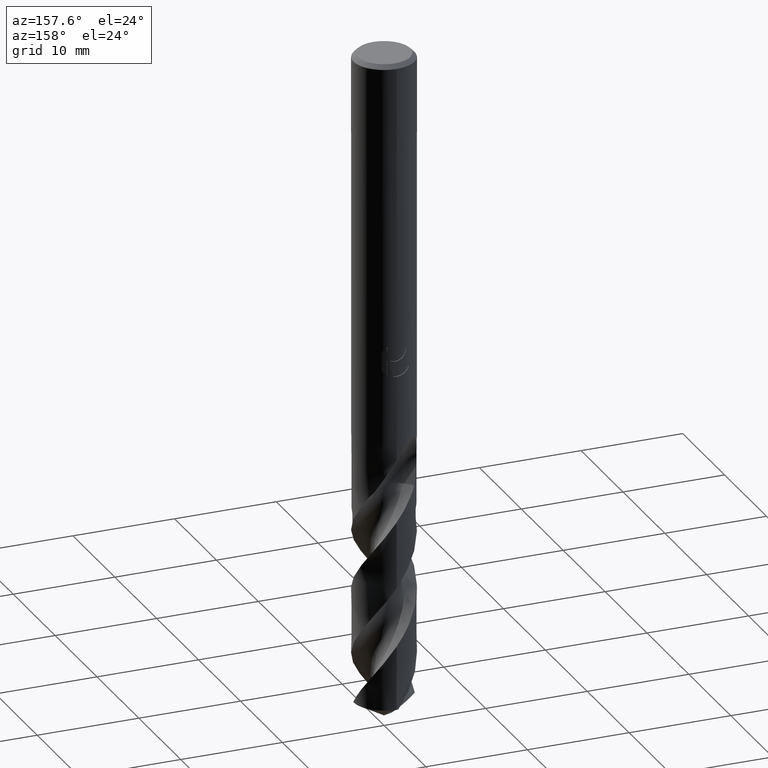
[diagram: clean part render]
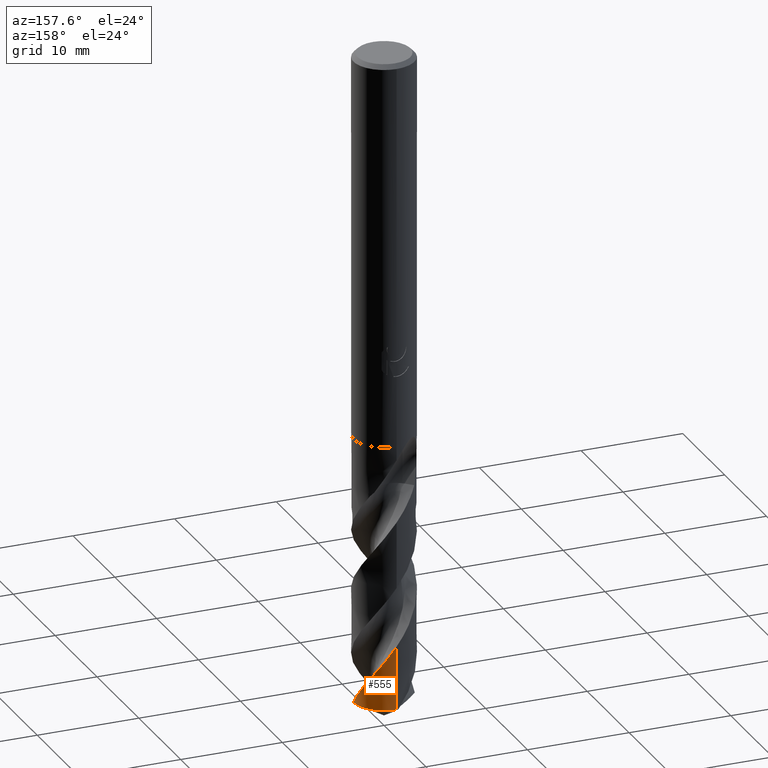
[diagram: same view with one face highlighted and labeled with its STEP entity id]
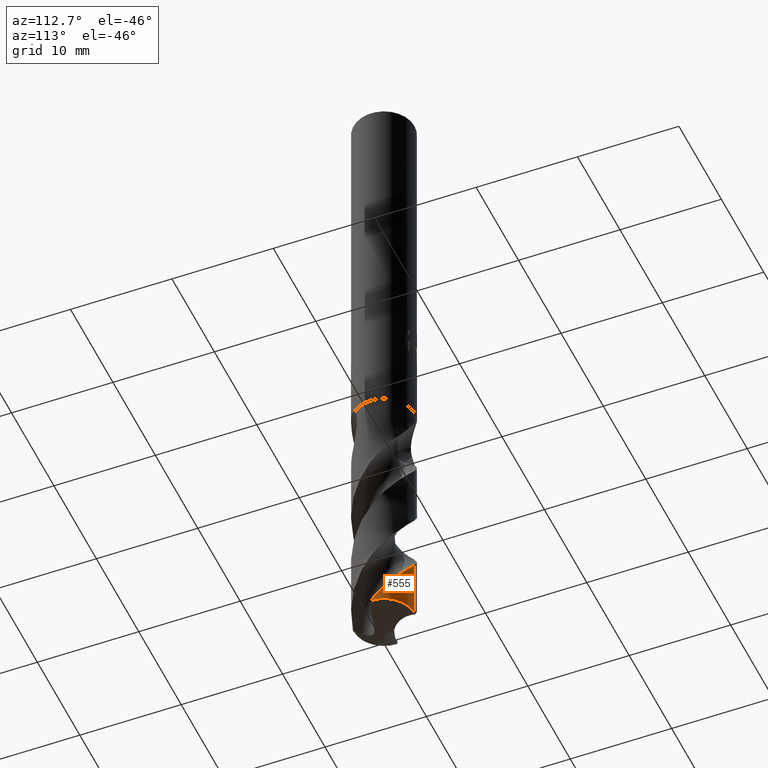
[diagram: same view with one face highlighted and labeled with its STEP entity id]
A machine part, auxiliary view. The second image highlights one B-rep face of the part: STEP entity #555.
A second angle (auxiliary view) of the same face is appended — the face is thin or edge-on in the first view.
In plain terms, the highlighted conical surface has half-angle 0 deg.
Its self-contained STEP definition (entity closure, byte-faithful):
#405=EDGE_CURVE('',#501,#683,#888,.T.);
#501=VERTEX_POINT('',#991);
#555=ADVANCED_FACE('',(#1050),#1051,.T.);
#561=VERTEX_POINT('',#1057);
#603=EDGE_CURVE('',#501,#561,#1101,.T.);
#661=EDGE_CURVE('',#683,#561,#1164,.T.);
#683=VERTEX_POINT('',#1189);
#888=LINE('',#2967,#2968);
#991=CARTESIAN_POINT('',(-8.38946031381558E-014,2.99997606256902,-57.9264292563744));
#1050=FACE_OUTER_BOUND('',#3512,.T.);
#1051=CONICAL_SURFACE('',#3513,2.99995,3.81717005294894E-006);
#1057=CARTESIAN_POINT('',(2.9991532543519,-0.0712724133896345,-64.1974181429173));
#1101=B_SPLINE_CURVE_WITH_KNOTS('',3,(#3694,#3695,#3696,#3697,#3698,#3699,#3700,#3701,#3702,#3703,#3704,#3705,#3706,#3707,#3708,#3709,#3710,#3711,#3712,#3713,#3714,#3715,#3716,#3717,#3718,#3719,#3720,#3721,#3722,#3723,#3724,#3725,#3726,#3727,#3728,#3729,#3730,#3731,#3732,#3733,#3734,#3735,#3736,#3737,#3738,#3739,#3740,#3741,#3742,#3743,#3744,#3745,#3746,#3747,#3748,#3749,#3750,#3751,#3752,#3753,#3754,#3755,#3756,#3757,#3758,#3759,#3760,#3761,#3762,#3763,#3764,#3765,#3766,#3767,#3768,#3769,#3770,#3771,#3772,#3773,#3774,#3775,#3776,#3777),.UNSPECIFIED.,.F.,.F.,(4,2,2,2,2,2,2,2,2,2,2,2,2,2,2,2,2,2,2,2,2,2,2,2,2,2,2,2,2,2,2,2,2,2,2,2,2,2,2,2,2,4),(0.0,0.0993045209650223,0.133810146428428,0.198759542952531,0.516186536699996,0.62758189448021,0.698954349675365,0.766036704284108,0.856023660495429,0.957565071765724,1.34121237799706,1.63577937175332,1.92231738243589,3.79579359251668,5.15351398343088,5.91578721984827,6.68924783986393,7.07780423442178,7.4437013965498,8.79860010794029,9.56043525586342,10.3343051465982,10.7225491212389,11.0750226756851,12.4456979071229,13.2055551735477,13.9797089353509,14.754609609826,16.2481457494753,16.408773560545,17.6175985892719,18.3915166199408,19.9131731669648,19.9630894831172,21.5787239955728,21.896467030199,23.0955768713887,23.3231330582614,23.7480115365779,25.2391787308531,25.6146624317587,26.7456793902221),.UNSPECIFIED.);
#1164=CIRCLE('',#4474,3.0);
#1189=CARTESIAN_POINT('',(-3.67577094231066E-016,3.0,-64.1974181429173));
#2967=CARTESIAN_POINT('',(-3.67570971199297E-016,2.99995,-51.0987090714587));
#2968=VECTOR('',#5059,1.0);
#3512=EDGE_LOOP('',(#5217,#5218,#5219));
#3513=AXIS2_PLACEMENT_3D('',#5220,#5221,#5222);
#3694=CARTESIAN_POINT('',(2.08517356567501,-2.15674644092882,-42.541));
#3695=CARTESIAN_POINT('',(2.07136653232982,-2.170095423052,-42.5679607171896));
#3696=CARTESIAN_POINT('',(2.05740288306707,-2.18333963844122,-42.5949154837478));
#3697=CARTESIAN_POINT('',(2.03833944362726,-2.20107325311923,-42.6311910884461));
#3698=CARTESIAN_POINT('',(2.03340304943714,-2.20563452088801,-42.6405384031462));
#3699=CARTESIAN_POINT('',(2.0191088056883,-2.21875349622778,-42.6674654106371));
#3700=CARTESIAN_POINT('',(2.00970140047016,-2.2272786070954,-42.6850154721121));
#3701=CARTESIAN_POINT('',(1.95378588236468,-2.27730313063062,-42.7882460877811));
#3702=CARTESIAN_POINT('',(1.9063544781887,-2.31720611764672,-42.8713793274116));
#3703=CARTESIAN_POINT('',(1.83822802725425,-2.37085201734974,-42.9848535458127));
#3704=CARTESIAN_POINT('',(1.8203220803714,-2.38462963033502,-43.0141781611451));
#3705=CARTESIAN_POINT('',(1.7905239267176,-2.40702137153266,-43.062269103193));
#3706=CARTESIAN_POINT('',(1.77880494094997,-2.41569511810347,-43.0810075399051));
#3707=CARTESIAN_POINT('',(1.75589639938842,-2.43239258512774,-43.1173443421208));
#3708=CARTESIAN_POINT('',(1.74473046428327,-2.44041445879868,-43.1349227732861));
#3709=CARTESIAN_POINT('',(1.7184237131452,-2.4590403648423,-43.1760792555341));
#3710=CARTESIAN_POINT('',(1.70324915900899,-2.46957542177771,-43.1996223156739));
#3711=CARTESIAN_POINT('',(1.67074038759414,-2.49170252230595,-43.2497692509442));
#3712=CARTESIAN_POINT('',(1.65322084627693,-2.50336385535204,-43.2766101266005));
#3713=CARTESIAN_POINT('',(1.5683505941923,-2.55855591110509,-43.4065077294057));
#3714=CARTESIAN_POINT('',(1.4999428734418,-2.59921755866335,-43.5104159267137));
#3715=CARTESIAN_POINT('',(1.37725341041438,-2.66577920327456,-43.6937514900046));
#3716=CARTESIAN_POINT('',(1.32314134453175,-2.6930456944711,-43.7736260769938));
#3717=CARTESIAN_POINT('',(1.21489793700394,-2.74354289512988,-43.9309337940763));
#3718=CARTESIAN_POINT('',(1.16079181057171,-2.76687240110662,-44.0083123193727));
#3719=CARTESIAN_POINT('',(0.747245215096435,-2.9308817726432,-44.5918968215558));
#3720=CARTESIAN_POINT('',(0.364400869372548,-3.00262188569272,-45.0921285035623));
#3721=CARTESIAN_POINT('',(-0.301246630460852,-2.99784399030013,-45.9653646088029));
#3722=CARTESIAN_POINT('',(-0.579476669953529,-2.95672180175718,-46.3309189907404));
#3723=CARTESIAN_POINT('',(-0.998862465742172,-2.83312409885286,-46.9035752356874));
#3724=CARTESIAN_POINT('',(-1.14584613657048,-2.776923717144,-47.1091632576306));
#3725=CARTESIAN_POINT('',(-1.43159451626058,-2.64112561208485,-47.5242865385535));
#3726=CARTESIAN_POINT('',(-1.5698921602147,-2.5613458984384,-47.7330770469368));
#3727=CARTESIAN_POINT('',(-1.76722747116512,-2.42548040210521,-48.0470383680851));
#3728=CARTESIAN_POINT('',(-1.83137453070607,-2.37741900483074,-48.15194726515));
#3729=CARTESIAN_POINT('',(-1.95205729134443,-2.27921120127809,-48.3557585832042));
#3730=CARTESIAN_POINT('',(-2.00874411852033,-2.22941101506075,-48.4545300867233));
#3731=CARTESIAN_POINT('',(-2.26617823706273,-1.98546342287508,-48.9196411582274));
#3732=CARTESIAN_POINT('',(-2.44117038254983,-1.7659152987889,-49.2845495479149));
#3733=CARTESIAN_POINT('',(-2.66316779634387,-1.38992969869679,-49.8564926481617));
#3734=CARTESIAN_POINT('',(-2.73226736627181,-1.24861291840141,-50.0620616148449));
#3735=CARTESIAN_POINT('',(-2.84857570865482,-0.95432166620553,-50.4772815808169));
#3736=CARTESIAN_POINT('',(-2.89529428473253,-0.801519924882488,-50.686212758842));
#3737=CARTESIAN_POINT('',(-2.94687848770726,-0.567464752081234,-51.0002666938955));
#3738=CARTESIAN_POINT('',(-2.9609762714823,-0.488603868042122,-51.1051130472588));
#3739=CARTESIAN_POINT('',(-2.98182218216022,-0.337235553330764,-51.3052606918719));
#3740=CARTESIAN_POINT('',(-2.98911592773511,-0.264900801299313,-51.4004423618554));
#3741=CARTESIAN_POINT('',(-3.01189817436418,0.0895856762864942,-51.8663045209416));
#3742=CARTESIAN_POINT('',(-2.9900960114766,0.372867331049838,-52.2354661280782));
#3743=CARTESIAN_POINT('',(-2.89500428409829,0.802040236693586,-52.8112639228499));
#3744=CARTESIAN_POINT('',(-2.8491615419821,0.952128370805245,-53.0163850702284));
#3745=CARTESIAN_POINT('',(-2.73345949273672,1.24635878100088,-53.4312340794528));
#3746=CARTESIAN_POINT('',(-2.66328985404819,1.39001770878175,-53.6402693187283));
#3747=CARTESIAN_POINT('',(-2.50058707225591,1.66504810665683,-54.0589711286286));
#3748=CARTESIAN_POINT('',(-2.40836366290219,1.79585020447587,-54.2678035387961));
#3749=CARTESIAN_POINT('',(-2.1092694570249,2.15535957961906,-54.8812454176294));
#3750=CARTESIAN_POINT('',(-1.87696502862601,2.36045928389713,-55.2828626690583));
#3751=CARTESIAN_POINT('',(-1.58950587520039,2.54447944261528,-55.7299856621291));
#3752=CARTESIAN_POINT('',(-1.56130576459082,2.56188000308683,-55.7733935309542));
#3753=CARTESIAN_POINT('',(-1.31848580077571,2.70621198784292,-56.1436968070644));
#3754=CARTESIAN_POINT('',(-1.08901341489298,2.80644027858558,-56.4700101951203));
#3755=CARTESIAN_POINT('',(-0.696589397182305,2.92234622343335,-57.0061337871462));
#3756=CARTESIAN_POINT('',(-0.540112270907924,2.95526533317559,-57.2147940128718));
#3757=CARTESIAN_POINT('',(-0.0705405436346045,3.01551953716927,-57.8358241417033));
#3758=CARTESIAN_POINT('',(0.245228198712048,3.00638817345444,-58.2449637535258));
#3759=CARTESIAN_POINT('',(0.564029273240131,2.94649801165927,-58.6699272727414));
#3760=CARTESIAN_POINT('',(0.574143757517615,2.94454390403214,-58.6834235667625));
#3761=CARTESIAN_POINT('',(0.911327645379467,2.87759684660935,-59.133897992897));
#3762=CARTESIAN_POINT('',(1.22546529633679,2.75852052151329,-59.5689680234893));
#3763=CARTESIAN_POINT('',(1.57017257452221,2.5571017179102,-60.0919327609717));
#3764=CARTESIAN_POINT('',(1.62570082502518,2.52216277326938,-60.1778265089585));
#3765=CARTESIAN_POINT('',(1.88506007360074,2.34685104719582,-60.5883287654894));
#3766=CARTESIAN_POINT('',(2.07224859028144,2.18335595226422,-60.9121467692554));
#3767=CARTESIAN_POINT('',(2.26855427425822,1.96362009488363,-61.2981574384864));
#3768=CARTESIAN_POINT('',(2.29903948316322,1.92783863431599,-61.3597108324576));
#3769=CARTESIAN_POINT('',(2.38400349090287,1.82323026377244,-61.5362256002625));
#3770=CARTESIAN_POINT('',(2.43629255072782,1.75274401157257,-61.6510601779716));
#3771=CARTESIAN_POINT('',(2.6577833304792,1.4250890622749,-62.1697463065243));
#3772=CARTESIAN_POINT('',(2.78997296462567,1.1449419565104,-62.5714501594697));
#3773=CARTESIAN_POINT('',(2.89916338209915,0.775139901170985,-63.076618468879));
#3774=CARTESIAN_POINT('',(2.91822650880209,0.699956169909145,-63.1782024420418));
#3775=CARTESIAN_POINT('',(2.98292787791943,0.395775131933621,-63.5860751536291));
#3776=CARTESIAN_POINT('',(3.0047047893025,0.162386136424744,-63.8913763535966));
#3777=CARTESIAN_POINT('',(2.9991532543519,-0.0712724133896327,-64.1974181429173));
#4474=AXIS2_PLACEMENT_3D('',#5344,#5345,#5346);
#5059=DIRECTION('',(-4.67453070045043E-022,3.81717005293967E-006,-0.999999999992715));
#5217=ORIENTED_EDGE('',*,*,#405,.F.);
#5218=ORIENTED_EDGE('',*,*,#603,.T.);
#5219=ORIENTED_EDGE('',*,*,#661,.F.);
#5220=CARTESIAN_POINT('',(0.0,0.0,-51.0987090714587));
#5221=DIRECTION('',(0.0,-0.0,-1.0));
#5222=DIRECTION('',(0.0,1.0,0.0));
#5344=CARTESIAN_POINT('',(0.0,0.0,-64.1974181429173));
#5345=DIRECTION('',(0.0,0.0,-1.0));
#5346=DIRECTION('',(0.0,1.0,0.0));